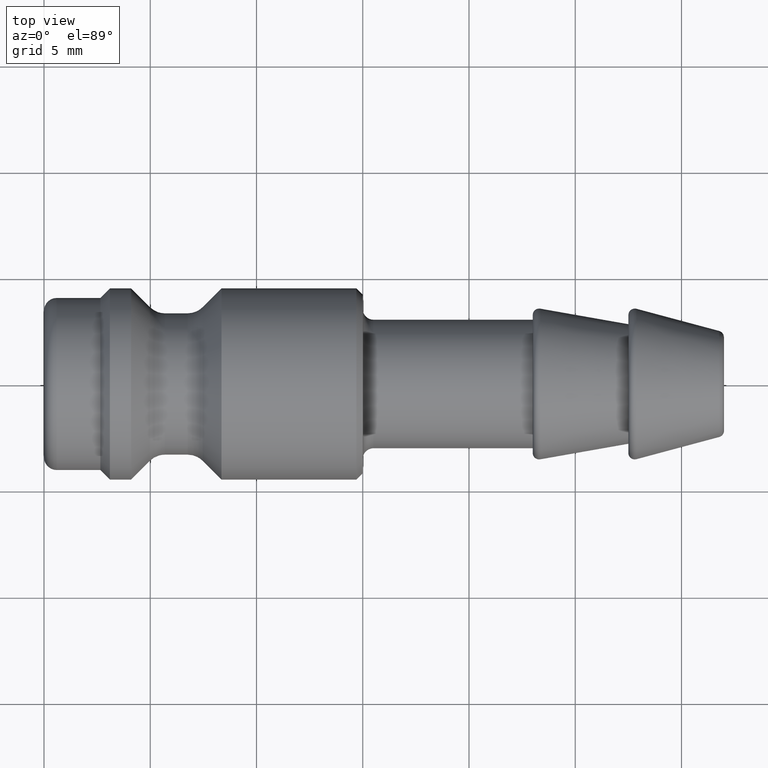
[diagram: clean part render]
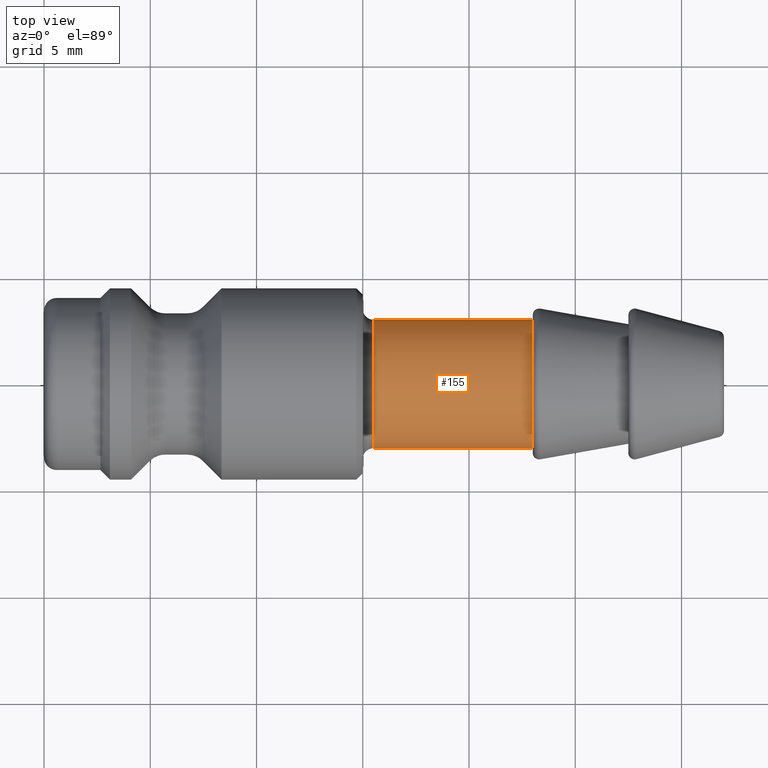
[diagram: same view with one face highlighted and labeled with its STEP entity id]
A machine part, top view. The second image highlights one B-rep face of the part: STEP entity #155.
In plain terms, the highlighted cylindrical surface (bore or boss wall) has radius 3.025 mm, axis along (-1, 0, 0).
Its self-contained STEP definition (entity closure, byte-faithful):
#124=CARTESIAN_POINT('',(23.000000000000004,-3.025,0.0));
#125=VERTEX_POINT('',#124);
#126=CARTESIAN_POINT('',(23.000000000000004,0.0,0.0));
#127=DIRECTION('',(-1.0,0.0,0.0));
#128=DIRECTION('',(0.0,-1.0,0.0));
#129=AXIS2_PLACEMENT_3D('',#126,#127,#128);
#130=CIRCLE('',#129,3.025);
#131=EDGE_CURVE('',#125,#125,#130,.T.);
#136=CARTESIAN_POINT('',(19.250000000000004,0.0,0.0));
#137=DIRECTION('',(-1.0,0.0,0.0));
#138=DIRECTION('',(0.0,-1.0,0.0));
#139=AXIS2_PLACEMENT_3D('',#136,#137,#138);
#140=CYLINDRICAL_SURFACE('',#139,3.025);
#141=CARTESIAN_POINT('',(15.5,-3.025,0.0));
#142=VERTEX_POINT('',#141);
#143=CARTESIAN_POINT('',(15.5,0.0,0.0));
#144=DIRECTION('',(-1.0,0.0,0.0));
#145=DIRECTION('',(0.0,-1.0,0.0));
#146=AXIS2_PLACEMENT_3D('',#143,#144,#145);
#147=CIRCLE('',#146,3.025);
#148=EDGE_CURVE('',#142,#142,#147,.T.);
#149=ORIENTED_EDGE('',*,*,#148,.F.);
#150=EDGE_LOOP('',(#149));
#151=FACE_OUTER_BOUND('',#150,.T.);
#152=ORIENTED_EDGE('',*,*,#131,.T.);
#153=EDGE_LOOP('',(#152));
#154=FACE_BOUND('',#153,.T.);
#155=ADVANCED_FACE('',(#151,#154),#140,.T.);